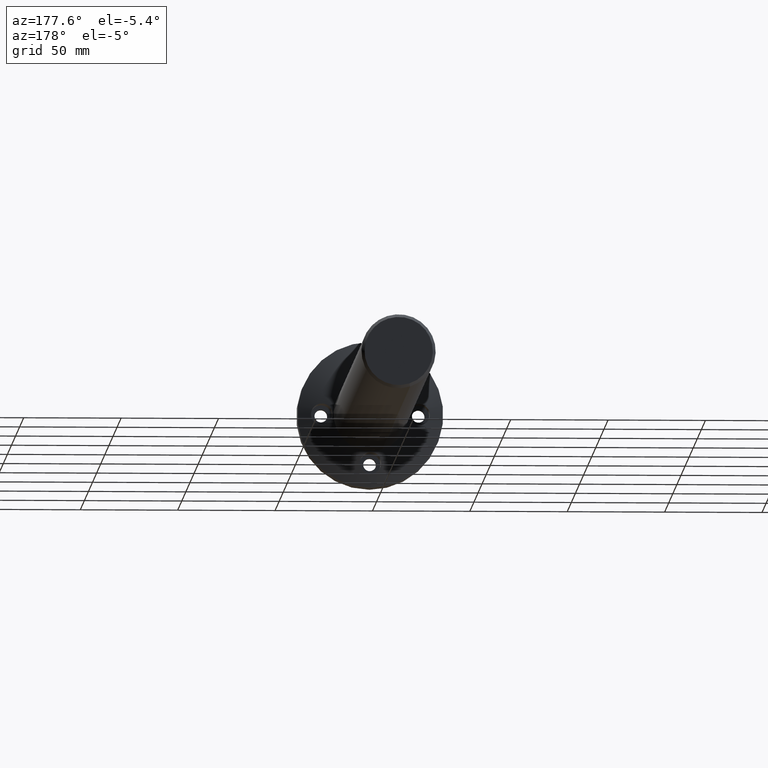
[diagram: clean part render]
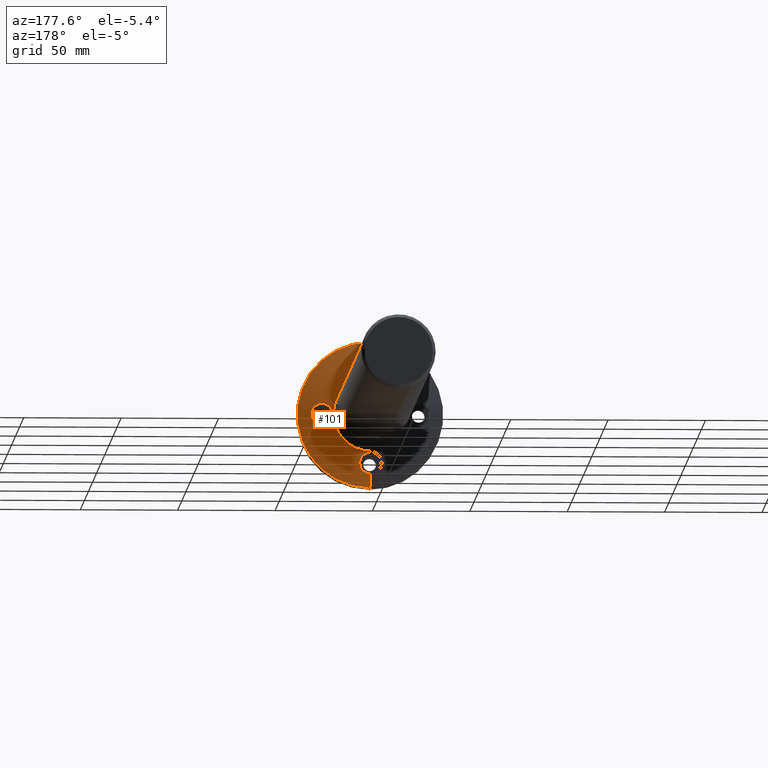
[diagram: same view with one face highlighted and labeled with its STEP entity id]
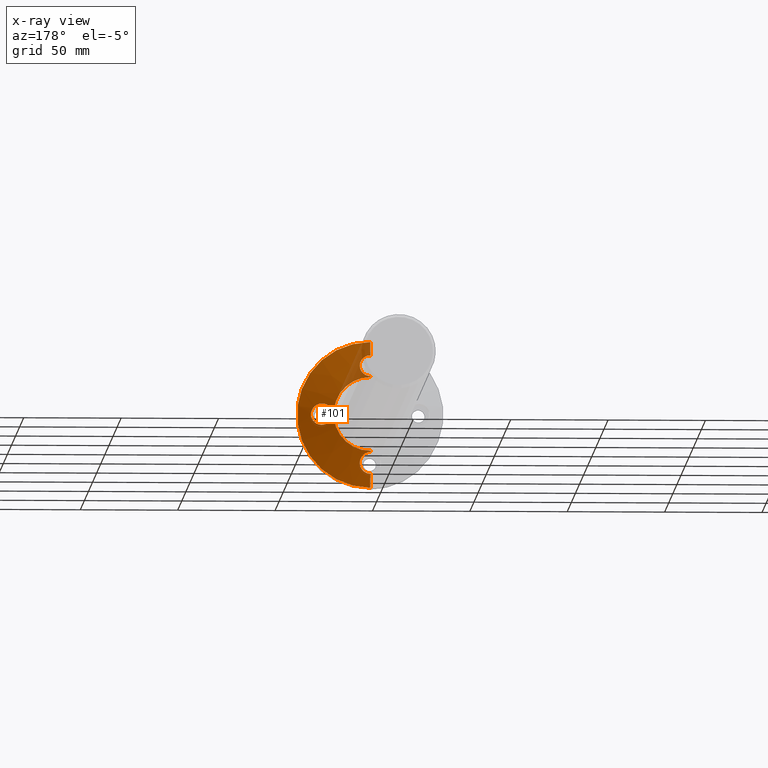
[diagram: x-ray of the same camera — body ghosted, the highlighted face saturated]
A machine part, auxiliary view. The second image highlights one B-rep face of the part: STEP entity #101.
The next image is the same camera in x-ray: the body ghosted, the highlighted face saturated — about 9% of this face is hidden behind the body in this view.
In plain terms, the highlighted conical surface has half-angle 74.876 deg.
Its self-contained STEP definition (entity closure, byte-faithful):
#10 = CARTESIAN_POINT ( 'NONE',  ( -16.60624658554945700, 68.65460829900169400, -0.09569721154230280400 ) ) ;
#26 = ORIENTED_EDGE ( 'NONE', *, *, #618, .F. ) ;
#32 = CARTESIAN_POINT ( 'NONE',  ( -16.94690578001978000, 68.73266439080711600, 0.3275742327244381400 ) ) ;
#40 = CARTESIAN_POINT ( 'NONE',  ( -21.05816251671771900, 69.74399576351258600, -8.830357665184697800 ) ) ;
#50 = EDGE_CURVE ( 'NONE', #1341, #619, #439, .T. ) ;
#52 = VECTOR ( 'NONE', #536, 1000.000000000000200 ) ;
#60 = CARTESIAN_POINT ( 'NONE',  ( -44.60539087235412800, 71.32912395020548500, 16.35219785183014500 ) ) ;
#62 = DIRECTION ( 'NONE',  ( 0.0000000000000000000, 0.0000000000000000000, -1.000000000000000000 ) ) ;
#64 = CARTESIAN_POINT ( 'NONE',  ( -43.58958089557030000, 71.19733541957762700, 16.74139431252769900 ) ) ;
#71 = CARTESIAN_POINT ( 'NONE',  ( -24.65365441994059400, 70.76842541944434100, -7.508066868315199600 ) ) ;
#75 = CARTESIAN_POINT ( 'NONE',  ( -26.55772630472841600, 71.39191258144171600, -2.953564303136255300 ) ) ;
#78 = CARTESIAN_POINT ( 'NONE',  ( -25.16978525371929700, 70.93057220964379900, -7.001239668278084400 ) ) ;
#82 = CARTESIAN_POINT ( 'NONE',  ( -43.11920126176104900, 71.10603420446851400, -23.67793994042920500 ) ) ;
#96 = DIRECTION ( 'NONE',  ( -0.0000000000000000000, -1.000000000000000000, -0.0000000000000000000 ) ) ;
#97 = CARTESIAN_POINT ( 'NONE',  ( -44.78879097471314500, 68.45134600886341000, -33.68502441749484400 ) ) ;
#101 = ADVANCED_FACE ( 'NONE', ( #1251, #1293 ), #1339, .T. ) ;
#103 = CARTESIAN_POINT ( 'NONE',  ( -40.56023412354571900, 69.84644654984101900, -27.94266016243413000 ) ) ;
#113 = CARTESIAN_POINT ( 'NONE',  ( -41.65876763513186600, 68.92036512662151900, 24.97538976976871400 ) ) ;
#122 = CARTESIAN_POINT ( 'NONE',  ( -40.58931737704087100, 69.56522259748140900, 22.35352294922280700 ) ) ;
#128 = CARTESIAN_POINT ( 'NONE',  ( -46.05816251671766500, 71.52719886414516300, -22.33035766518410300 ) ) ;
#129 = VERTEX_POINT ( 'NONE', #632 ) ;
#131 = CARTESIAN_POINT ( 'NONE',  ( -41.88519854635259800, 68.85422633551064600, 25.25698301139731300 ) ) ;
#133 = CARTESIAN_POINT ( 'NONE',  ( -17.73522663128871500, 68.91605519127281800, 1.066963624835175000 ) ) ;
#166 = CARTESIAN_POINT ( 'NONE',  ( -46.05816251671766500, 71.52719886414516300, 15.66964233481589600 ) ) ;
#188 = CARTESIAN_POINT ( 'NONE',  ( -40.59595451737827400, 69.93981530469852700, 20.93579907716550200 ) ) ;
#191 = CARTESIAN_POINT ( 'NONE',  ( -21.05816251671766500, 69.74399576351260100, 2.169642334815982600 ) ) ;
#193 = CARTESIAN_POINT ( 'NONE',  ( -41.10692090225045100, 70.41496352874732200, 19.24849630072468900 ) ) ;
#194 = CARTESIAN_POINT ( 'NONE',  ( -46.05816251671766500, 68.41909075603705000, -33.83035766518411000 ) ) ;
#196 = CARTESIAN_POINT ( 'NONE',  ( -21.05816251671771900, 69.74399576351258600, -8.830357665184697800 ) ) ;
#205 = ORIENTED_EDGE ( 'NONE', *, *, #1409, .T. ) ;
#207 = CARTESIAN_POINT ( 'NONE',  ( -40.74383702224907500, 70.13164403224915600, -26.90227744684101200 ) ) ;
#214 = CARTESIAN_POINT ( 'NONE',  ( -44.60522586861683400, 71.32910807330385700, -23.01295950916673400 ) ) ;
#216 = LINE ( 'NONE', #128, #312 ) ;
#220 = CARTESIAN_POINT ( 'NONE',  ( -21.41339346316867400, 69.83776180087851100, -8.830357665184006800 ) ) ;
#222 = EDGE_CURVE ( 'NONE', #1458, #759, #755, .T. ) ;
#224 = CARTESIAN_POINT ( 'NONE',  ( -40.59663953545865000, 69.94116881205749800, -27.59153520947653200 ) ) ;
#226 = ORIENTED_EDGE ( 'NONE', *, *, #1396, .T. ) ;
#230 = CARTESIAN_POINT ( 'NONE',  ( -43.11162022903831600, 68.61007866773638900, -32.97807544447906700 ) ) ;
#237 = CARTESIAN_POINT ( 'NONE',  ( -46.05816251671778600, 68.41909075603673800, 27.16964233481732200 ) ) ;
#240 = CARTESIAN_POINT ( 'NONE',  ( -41.55160049460844400, 68.95526781585121500, 24.82769996619545000 ) ) ;
#250 = ORIENTED_EDGE ( 'NONE', *, *, #50, .T. ) ;
#253 = CARTESIAN_POINT ( 'NONE',  ( -41.25620700986516500, 69.06294756174574400, 24.37536596429857400 ) ) ;
#259 = CARTESIAN_POINT ( 'NONE',  ( -20.70503523770813500, 69.65078500592144900, -8.830357665184022800 ) ) ;
#264 = CARTESIAN_POINT ( 'NONE',  ( -19.31372993312659100, 69.29747811263794700, -8.558455785550494400 ) ) ;
#312 = VECTOR ( 'NONE', #1031, 1000.000000000000200 ) ;
#316 = CARTESIAN_POINT ( 'NONE',  ( -40.55679101883535500, 69.65618820360545300, 22.00201153266048900 ) ) ;
#317 = B_SPLINE_CURVE_WITH_KNOTS ( 'NONE', 3,
 ( #1502, #1115, #846, #60, #1240, #64, #982, #321, #584, #716, #446, #1634, #193, #1383, #976, #188, #1106, #316, #122, #1047, #1573, #382, #253, #240, #113, #131, #1053, #1550, #766, #505, #1560, #1160, #776, #1173, #764, #888, #1308, #237 ),
 .UNSPECIFIED., .F., .F.,
 ( 4, 2, 2, 2, 2, 2, 2, 2, 2, 2, 2, 2, 2, 2, 2, 2, 2, 2, 4 ),
 ( 0.004468675874222742900, 0.005563339059980961600, 0.006658002245739180400, 0.007752665431497399200, 0.008847328617255616200, 0.009941991803013836700, 0.01103665498877205400, 0.01213131817453027400, 0.01322598136028849100, 0.01432064454604671000, 0.01541530773180493100, 0.01650997091756314900, 0.01705730251044225400, 0.01760463410332135900, 0.01869929728907958300, 0.01979396047483780700, 0.02034129206771692600, 0.02088862366059605200, 0.02198328684635429000 ),
 .UNSPECIFIED. ) ;
#321 = CARTESIAN_POINT ( 'NONE',  ( -42.67030034295376600, 71.00646397610276500, 17.32199816697355400 ) ) ;
#335 = CARTESIAN_POINT ( 'NONE',  ( -26.25638516096307000, 71.28848307678021000, -1.524243724962500700 ) ) ;
#336 = CARTESIAN_POINT ( 'NONE',  ( -46.05816251671766500, 71.39206372901001900, -22.83035766518410600 ) ) ;
#344 = CARTESIAN_POINT ( 'NONE',  ( -26.55859123002772300, 71.39221227828372200, -3.694306927961810600 ) ) ;
#349 = VERTEX_POINT ( 'NONE', #661 ) ;
#351 = CARTESIAN_POINT ( 'NONE',  ( -44.25904261686281400, 68.48566770808059800, -33.53100308842083900 ) ) ;
#356 = CARTESIAN_POINT ( 'NONE',  ( -41.09026002585400100, 69.13978856601960400, -30.71751634774037500 ) ) ;
#382 = CARTESIAN_POINT ( 'NONE',  ( -41.09156685698332000, 69.13922176739214400, 24.05916203111402400 ) ) ;
#384 = VECTOR ( 'NONE', #793, 1000.000000000000200 ) ;
#387 = CARTESIAN_POINT ( 'NONE',  ( -16.71482299094971000, 68.67930368028437700, -6.724349529225327700 ) ) ;
#409 = ORIENTED_EDGE ( 'NONE', *, *, #997, .T. ) ;
#411 = CARTESIAN_POINT ( 'NONE',  ( -18.33372144679086800, 69.05845655494984200, 1.460859120020302000 ) ) ;
#416 = CARTESIAN_POINT ( 'NONE',  ( -46.05816251671766500, 71.52719886414516300, -22.33035766518410300 ) ) ;
#429 = CARTESIAN_POINT ( 'NONE',  ( -15.59457620580455600, 68.42714608589422200, -2.601276786680126700 ) ) ;
#439 = B_SPLINE_CURVE_WITH_KNOTS ( 'NONE', 3,
 ( #1258, #1127, #610, #1647, #472, #735, #457, #591, #1655, #1637, #597, #723, #866, #1006, #1515, #850, #335, #1386, #1122, #613, #75, #344, #1268, #1527, #462, #741, #1651, #1399, #78, #71, #729, #862, #989, #1002, #1660, #873, #220, #196 ),
 .UNSPECIFIED., .F., .F.,
 ( 4, 2, 2, 2, 2, 2, 2, 2, 2, 2, 2, 2, 2, 2, 2, 2, 2, 2, 4 ),
 ( 0.02175546955724257500, 0.02285220342231097900, 0.02394893728737938400, 0.02449730421991359200, 0.02504567115244779900, 0.02614240501751623200, 0.02723913888258466500, 0.02833587274765309700, 0.02888423968018731900, 0.02943260661272154000, 0.03052934047778998300, 0.03162607434285842600, 0.03272280820792687600, 0.03381954207299531900, 0.03491627593806376200, 0.03601300980313221200, 0.03710974366820065500, 0.03820647753326909800, 0.03930321139833754100 ),
 .UNSPECIFIED. ) ;
#446 = CARTESIAN_POINT ( 'NONE',  ( -41.66456530071010200, 70.68582886160324100, 18.34223320908488500 ) ) ;
#449 = ORIENTED_EDGE ( 'NONE', *, *, #1049, .T. ) ;
#457 = CARTESIAN_POINT ( 'NONE',  ( -23.45816230670438800, 70.40933113374133300, 1.621598874381808400 ) ) ;
#460 = CARTESIAN_POINT ( 'NONE',  ( -20.35234451495904300, 69.55957688282958900, 2.135806115539552700 ) ) ;
#462 = CARTESIAN_POINT ( 'NONE',  ( -26.26755666788407600, 71.29210116673124300, -5.131666110906019500 ) ) ;
#472 = CARTESIAN_POINT ( 'NONE',  ( -22.80604304112173600, 70.22117763673831800, 1.896491110285839500 ) ) ;
#474 = CARTESIAN_POINT ( 'NONE',  ( -41.11054929936428000, 70.41708536868567600, -25.90197100303684500 ) ) ;
#481 = CARTESIAN_POINT ( 'NONE',  ( -43.27539067963814300, 71.13741378585804400, -23.58280502300192100 ) ) ;
#487 = EDGE_LOOP ( 'NONE', ( #636, #859, #205, #226, #26, #1644, #449, #1213 ) ) ;
#490 = DIRECTION ( 'NONE',  ( 0.0000000000000000000, 0.0000000000000000000, -1.000000000000000000 ) ) ;
#505 = CARTESIAN_POINT ( 'NONE',  ( -43.26609736458345900, 68.58618097378310100, 26.42243712390127200 ) ) ;
#508 = CARTESIAN_POINT ( 'NONE',  ( -46.05816251671766500, 71.52719886414516300, 15.66964233481589600 ) ) ;
#519 = CARTESIAN_POINT ( 'NONE',  ( -15.70373150843245800, 68.45139846615293800, -4.600590315431669600 ) ) ;
#536 = DIRECTION ( 'NONE',  ( 0.0000000000000000000, -0.2609090251427748100, -0.9653633930282662400 ) ) ;
#544 = CARTESIAN_POINT ( 'NONE',  ( -15.91969952652287300, 68.49956082812541100, -5.299874536045741100 ) ) ;
#554 = CARTESIAN_POINT ( 'NONE',  ( -15.59493342548375600, 68.42722498624642900, -4.063035991368762400 ) ) ;
#559 = CARTESIAN_POINT ( 'NONE',  ( -15.85741788476034700, 68.48564558411463600, -5.129156169930223700 ) ) ;
#565 = CARTESIAN_POINT ( 'NONE',  ( -17.45668579638198300, 68.85076286378915700, 0.8421385834060335400 ) ) ;
#574 = CARTESIAN_POINT ( 'NONE',  ( -21.05816251671771900, 69.74399576351258600, -8.830357665184697800 ) ) ;
#584 = CARTESIAN_POINT ( 'NONE',  ( -42.39528542509930300, 70.93279143362494200, 17.55108420008048900 ) ) ;
#591 = CARTESIAN_POINT ( 'NONE',  ( -23.77425080506944600, 70.50233444459665600, 1.455531695380367000 ) ) ;
#597 = CARTESIAN_POINT ( 'NONE',  ( -24.65323950057832300, 70.76830840986028200, 0.8473660412453049000 ) ) ;
#610 = CARTESIAN_POINT ( 'NONE',  ( -21.76726086315408500, 69.93308044410099500, 2.135395654492593400 ) ) ;
#613 = CARTESIAN_POINT ( 'NONE',  ( -26.51989321187921800, 71.37876038322350800, -2.587037761096999200 ) ) ;
#615 = CARTESIAN_POINT ( 'NONE',  ( -40.68822492960811800, 69.43351003810661800, -29.53248688436341100 ) ) ;
#618 = EDGE_CURVE ( 'NONE', #349, #1561, #1495, .T. ) ;
#619 = VERTEX_POINT ( 'NONE', #574 ) ;
#625 = CARTESIAN_POINT ( 'NONE',  ( -43.58899139349178900, 68.54903063833484100, -33.24832615935092400 ) ) ;
#632 = CARTESIAN_POINT ( 'NONE',  ( -46.05816251671766500, 71.39206372901001900, -22.83035766518410600 ) ) ;
#636 = ORIENTED_EDGE ( 'NONE', *, *, #643, .T. ) ;
#643 = EDGE_CURVE ( 'NONE', #990, #1458, #751, .T. ) ;
#652 = CARTESIAN_POINT ( 'NONE',  ( -15.73819577568867300, 68.45905550362310500, -1.888037250524882800 ) ) ;
#661 = CARTESIAN_POINT ( 'NONE',  ( -46.05816251671766500, 66.52719886414514900, -40.83035766518411000 ) ) ;
#667 = AXIS2_PLACEMENT_3D ( 'NONE', #1509, #1643, #1105 ) ;
#682 = CARTESIAN_POINT ( 'NONE',  ( -46.05816251671766500, 66.52719886414514900, 34.16964233481590400 ) ) ;
#701 = B_SPLINE_CURVE_WITH_KNOTS ( 'NONE', 3,
 ( #194, #851, #738, #97, #1019, #351, #1404, #625, #1539, #230, #1270, #1275, #1263, #864, #1145, #356, #748, #752, #1656, #615, #1529, #1014, #103, #224, #1417, #207, #1522, #1678, #474, #1003, #1518, #1410, #742, #1141, #82, #481, #886, #869, #1008, #214, #1125, #1665, #336 ),
 .UNSPECIFIED., .F., .F.,
 ( 4, 2, 2, 1, 2, 2, 2, 2, 2, 2, 2, 2, 2, 2, 2, 2, 2, 2, 2, 2, 2, 4 ),
 ( 0.004156932632860993100, 0.005251641798959641100, 0.005798996382008966000, 0.006346350965058290800, 0.006893705548107614800, 0.007441060131156940600, 0.008535769297255590300, 0.009630478463354240000, 0.01072518762945289800, 0.01127254221250222100, 0.01181989679555154500, 0.01291460596165021300, 0.01400931512774888100, 0.01455666971079822200, 0.01510402429384756000, 0.01619873345994623400, 0.01729344262604491300, 0.01838815179214359200, 0.01893550637519293700, 0.01948286095824228200, 0.02057757012434099900, 0.02167227929043971700 ),
 .UNSPECIFIED. ) ;
#704 = CARTESIAN_POINT ( 'NONE',  ( -17.46366019158469700, 68.85255224359654800, -7.497129224248015000 ) ) ;
#716 = CARTESIAN_POINT ( 'NONE',  ( -41.89042533144418500, 70.77194549937171100, 18.06282151143329500 ) ) ;
#723 = CARTESIAN_POINT ( 'NONE',  ( -25.16408287992512200, 70.92876757956790400, 0.3465121799620609100 ) ) ;
#729 = CARTESIAN_POINT ( 'NONE',  ( -24.37473128081907700, 70.68251409929020200, -7.732184273248290800 ) ) ;
#735 = CARTESIAN_POINT ( 'NONE',  ( -23.29723708930370700, 70.36250471451934600, 1.696351364658877500 ) ) ;
#738 = CARTESIAN_POINT ( 'NONE',  ( -45.32909044894255900, 68.42709048684042700, -33.79419280909189600 ) ) ;
#741 = CARTESIAN_POINT ( 'NONE',  ( -25.98472872053677900, 71.19677149790337000, -5.802491354575341400 ) ) ;
#742 = CARTESIAN_POINT ( 'NONE',  ( -42.39757600260455900, 70.93338031717738100, -24.20997899590841100 ) ) ;
#748 = CARTESIAN_POINT ( 'NONE',  ( -40.88933617556146100, 69.26223789288157200, -30.21857896804521100 ) ) ;
#751 = CIRCLE ( 'NONE', #806, 19.00000000000000000 ) ;
#752 = CARTESIAN_POINT ( 'NONE',  ( -40.83012682751781600, 69.30449823149453400, -30.04777201416505900 ) ) ;
#755 = LINE ( 'NONE', #508, #384 ) ;
#759 = VERTEX_POINT ( 'NONE', #1271 ) ;
#764 = CARTESIAN_POINT ( 'NONE',  ( -44.78964719715499900, 68.45130371031062600, 27.02449936426412000 ) ) ;
#766 = CARTESIAN_POINT ( 'NONE',  ( -42.65938638619843500, 68.68013469303598100, 26.00934358438731700 ) ) ;
#776 = CARTESIAN_POINT ( 'NONE',  ( -44.25926846235225300, 68.48564788420746700, 26.87037641606230700 ) ) ;
#783 = CARTESIAN_POINT ( 'NONE',  ( -15.84464287357069700, 68.48273990715955500, -1.540424313911273700 ) ) ;
#793 = DIRECTION ( 'NONE',  ( 1.182229189286094700E-016, -0.2609090251427748100, 0.9653633930282662400 ) ) ;
#796 = CARTESIAN_POINT ( 'NONE',  ( -46.05816251671766500, 71.52719886414516300, -22.33035766518410300 ) ) ;
#806 = AXIS2_PLACEMENT_3D ( 'NONE', #1368, #843, #62 ) ;
#843 = DIRECTION ( 'NONE',  ( -0.0000000000000000000, -1.000000000000000000, -0.0000000000000000000 ) ) ;
#846 = CARTESIAN_POINT ( 'NONE',  ( -45.32764572194874800, 71.37944363670172300, 16.20593420819867300 ) ) ;
#850 = CARTESIAN_POINT ( 'NONE',  ( -26.19264545190629100, 71.26684472791721700, -1.350351319131729300 ) ) ;
#851 = CARTESIAN_POINT ( 'NONE',  ( -45.69219328943715700, 68.41909075603706500, -33.83035766518411700 ) ) ;
#859 = ORIENTED_EDGE ( 'NONE', *, *, #222, .T. ) ;
#862 = CARTESIAN_POINT ( 'NONE',  ( -23.78211366240538300, 70.50419597494223500, -8.121578387545119100 ) ) ;
#864 = CARTESIAN_POINT ( 'NONE',  ( -41.64727705074945900, 68.92028718105446200, -31.63533288809220800 ) ) ;
#866 = CARTESIAN_POINT ( 'NONE',  ( -25.39944191147544600, 71.00440698908691700, 0.06568064911366004700 ) ) ;
#869 = CARTESIAN_POINT ( 'NONE',  ( -43.75838545497507000, 71.22130929603065400, -23.33098513696145600 ) ) ;
#873 = CARTESIAN_POINT ( 'NONE',  ( -21.77212438126205600, 69.93441324458335400, -8.795261159280405700 ) ) ;
#886 = CARTESIAN_POINT ( 'NONE',  ( -43.59509652272583900, 71.19504861930337800, -23.40934343062077600 ) ) ;
#888 = CARTESIAN_POINT ( 'NONE',  ( -45.32887363853427600, 68.42710795690497600, 27.13339904786091600 ) ) ;
#902 = AXIS2_PLACEMENT_3D ( 'NONE', #1283, #96, #490 ) ;
#920 = CARTESIAN_POINT ( 'NONE',  ( -16.71484007802989800, 68.67940008477933100, 0.04876173465541567400 ) ) ;
#946 = CARTESIAN_POINT ( 'NONE',  ( -46.05816251671766500, 68.41909075603705000, -33.83035766518411000 ) ) ;
#951 = CARTESIAN_POINT ( 'NONE',  ( -16.30247597256563500, 68.58553246156735400, -0.5440015630421890500 ) ) ;
#959 = CARTESIAN_POINT ( 'NONE',  ( -15.74944904431587900, 68.46156768525899800, -4.779834141519482500 ) ) ;
#976 = CARTESIAN_POINT ( 'NONE',  ( -40.73431480303295900, 70.13028925346291900, 20.24455017065935500 ) ) ;
#979 = CARTESIAN_POINT ( 'NONE',  ( -20.70655053729834800, 69.65118498131612100, 2.169642334815983500 ) ) ;
#982 = CARTESIAN_POINT ( 'NONE',  ( -43.26597147973495800, 71.13862595730329000, 16.91745450902581600 ) ) ;
#989 = CARTESIAN_POINT ( 'NONE',  ( -23.46522857230531800, 70.41084515950663600, -8.288517806627428500 ) ) ;
#990 = VERTEX_POINT ( 'NONE', #416 ) ;
#997 = EDGE_CURVE ( 'NONE', #619, #1341, #1239, .T. ) ;
#1002 = CARTESIAN_POINT ( 'NONE',  ( -22.80441675599360400, 70.22070405507861300, -8.557968507239051400 ) ) ;
#1003 = CARTESIAN_POINT ( 'NONE',  ( -41.27614385645049600, 70.50897361022485700, -25.59031037805897700 ) ) ;
#1006 = CARTESIAN_POINT ( 'NONE',  ( -25.80533537256015100, 71.13696586861961200, -0.5296197459422723500 ) ) ;
#1008 = CARTESIAN_POINT ( 'NONE',  ( -44.25841935824875900, 71.29223307201826300, -23.12058555863242000 ) ) ;
#1014 = CARTESIAN_POINT ( 'NONE',  ( -40.55626110555149900, 69.65770613138654700, -28.65686468178970600 ) ) ;
#1019 = CARTESIAN_POINT ( 'NONE',  ( -44.60901447667077200, 68.46154507596260400, -33.63917252259958000 ) ) ;
#1031 = DIRECTION ( 'NONE',  ( 0.0000000000000000000, -0.2609090251427748100, -0.9653633930282662400 ) ) ;
#1047 = CARTESIAN_POINT ( 'NONE',  ( -40.72256661132782100, 69.38803921621769200, 23.05072024388380600 ) ) ;
#1049 = EDGE_CURVE ( 'NONE', #1319, #129, #701, .T. ) ;
#1053 = CARTESIAN_POINT ( 'NONE',  ( -42.00480826000956100, 68.82282800068861700, 25.39155962834702900 ) ) ;
#1081 = VECTOR ( 'NONE', #1609, 1000.000000000000200 ) ;
#1105 = DIRECTION ( 'NONE',  ( 0.0000000000000000000, 0.0000000000000000000, -1.000000000000000000 ) ) ;
#1106 = CARTESIAN_POINT ( 'NONE',  ( -40.55962176802300700, 69.84340603248759300, 21.29333491217842300 ) ) ;
#1115 = CARTESIAN_POINT ( 'NONE',  ( -45.69331069003916200, 71.39206372901003300, 16.16964233481590400 ) ) ;
#1119 = LINE ( 'NONE', #166, #1081 ) ;
#1122 = CARTESIAN_POINT ( 'NONE',  ( -26.41040810007819700, 71.34109824788355100, -2.051012566327491200 ) ) ;
#1125 = CARTESIAN_POINT ( 'NONE',  ( -45.32744050975124100, 71.37943371831605100, -22.86667819054924400 ) ) ;
#1127 = CARTESIAN_POINT ( 'NONE',  ( -21.41186913655994000, 69.83735944273043100, 2.169642334815982600 ) ) ;
#1141 = CARTESIAN_POINT ( 'NONE',  ( -42.67177555698351200, 71.00684622882039300, -23.98152803711849800 ) ) ;
#1142 = EDGE_CURVE ( 'NONE', #990, #129, #216, .T. ) ;
#1145 = CARTESIAN_POINT ( 'NONE',  ( -41.25523281921680800, 69.06340735559139400, -31.03417684160665100 ) ) ;
#1160 = CARTESIAN_POINT ( 'NONE',  ( -44.08797729279596900, 68.49961331694189000, 26.80787017567852700 ) ) ;
#1173 = CARTESIAN_POINT ( 'NONE',  ( -44.60982207331247900, 68.46149367997883000, 26.97868789524069300 ) ) ;
#1178 = CARTESIAN_POINT ( 'NONE',  ( -20.35477101894306900, 69.56020882413001500, -8.796657596663486300 ) ) ;
#1184 = CARTESIAN_POINT ( 'NONE',  ( -18.34122629261159800, 69.06025689530280000, -8.125893360819493000 ) ) ;
#1203 = CARTESIAN_POINT ( 'NONE',  ( -46.05816251671778600, 68.41909075603673800, 27.16964233481732200 ) ) ;
#1210 = CARTESIAN_POINT ( 'NONE',  ( -18.65602886944429200, 69.13616469142859000, -8.290781934892292400 ) ) ;
#1213 = ORIENTED_EDGE ( 'NONE', *, *, #1142, .F. ) ;
#1216 = CARTESIAN_POINT ( 'NONE',  ( -17.32971300656974400, 68.82130706905486800, -7.377678569414648300 ) ) ;
#1223 = CARTESIAN_POINT ( 'NONE',  ( -15.55777606184462200, 68.41900514351915800, -2.971149609389062400 ) ) ;
#1226 = CARTESIAN_POINT ( 'NONE',  ( -21.05816251671766500, 69.74399576351260100, 2.169642334815982600 ) ) ;
#1239 = B_SPLINE_CURVE_WITH_KNOTS ( 'NONE', 3,
 ( #40, #259, #1178, #1599, #264, #1210, #1184, #1572, #1353, #704, #1216, #1359, #387, #1612, #1311, #544, #559, #959, #519, #554, #1474, #1223, #429, #652, #783, #1366, #951, #10, #920, #32, #1484, #565, #133, #411, #1468, #1347, #1252, #460, #979, #191 ),
 .UNSPECIFIED., .F., .F.,
 ( 4, 2, 2, 2, 2, 2, 2, 2, 2, 2, 2, 2, 2, 2, 2, 2, 2, 2, 2, 4 ),
 ( 0.004311644938302646400, 0.005401883976986413300, 0.006492123015670179400, 0.007582362054353947200, 0.008127481573695825900, 0.008672601093037704500, 0.009762840131721448000, 0.01085307917040519000, 0.01139819868974706300, 0.01194331820908893500, 0.01303355724777267900, 0.01412379628645642200, 0.01521403532514016600, 0.01630427436382390900, 0.01684939388316578100, 0.01739451340250765300, 0.01848475244119138200, 0.01957499147987511500, 0.02066523051855884500, 0.02175546955724257500 ),
 .UNSPECIFIED. ) ;
#1240 = CARTESIAN_POINT ( 'NONE',  ( -44.25806383312060200, 71.29221351665543700, 16.45992367458418200 ) ) ;
#1251 = FACE_BOUND ( 'NONE', #1393, .T. ) ;
#1252 = CARTESIAN_POINT ( 'NONE',  ( -19.65251159116656200, 69.38186978966983500, 1.998926621171707200 ) ) ;
#1258 = CARTESIAN_POINT ( 'NONE',  ( -21.05816251671766500, 69.74399576351260100, 2.169642334815982600 ) ) ;
#1263 = CARTESIAN_POINT ( 'NONE',  ( -41.87681137406495700, 68.85317190161241300, -31.92152689737128700 ) ) ;
#1268 = CARTESIAN_POINT ( 'NONE',  ( -26.52198648759295100, 71.37948506412927000, -4.058651302429844100 ) ) ;
#1270 = CARTESIAN_POINT ( 'NONE',  ( -42.65862362116435900, 68.68030181192145300, -32.66933258258673300 ) ) ;
#1271 = CARTESIAN_POINT ( 'NONE',  ( -46.05816251671766500, 71.39206372901001900, 16.16964233481589400 ) ) ;
#1275 = CARTESIAN_POINT ( 'NONE',  ( -42.38182282761938800, 68.73354036258273000, -32.43702545339535000 ) ) ;
#1283 = CARTESIAN_POINT ( 'NONE',  ( -46.05816251671766500, 71.52719886414516300, -3.330357665184104500 ) ) ;
#1290 = EDGE_CURVE ( 'NONE', #1319, #349, #1450, .T. ) ;
#1293 = FACE_OUTER_BOUND ( 'NONE', #487, .T. ) ;
#1308 = CARTESIAN_POINT ( 'NONE',  ( -45.69180207777663600, 68.41909075603703600, 27.16964233481590400 ) ) ;
#1311 = CARTESIAN_POINT ( 'NONE',  ( -16.13074146031467400, 68.54686586056121200, -5.800522873780104200 ) ) ;
#1319 = VERTEX_POINT ( 'NONE', #946 ) ;
#1339 = CONICAL_SURFACE ( 'NONE', #902, 19.00000000000000000, 1.306832603169191900 ) ;
#1341 = VERTEX_POINT ( 'NONE', #1226 ) ;
#1347 = CARTESIAN_POINT ( 'NONE',  ( -19.31310357153230900, 69.29732259623673900, 1.897539054909620000 ) ) ;
#1353 = CARTESIAN_POINT ( 'NONE',  ( -17.74393689646740000, 68.91836626974928500, -7.723345342026245700 ) ) ;
#1359 = CARTESIAN_POINT ( 'NONE',  ( -16.94621594995566100, 68.73232838431762600, -7.000570797724453300 ) ) ;
#1366 = CARTESIAN_POINT ( 'NONE',  ( -16.12863031562906400, 68.54638969762612500, -0.8637079636843527600 ) ) ;
#1368 = CARTESIAN_POINT ( 'NONE',  ( -46.05816251671766500, 71.52719886414516300, -3.330357665184104500 ) ) ;
#1383 = CARTESIAN_POINT ( 'NONE',  ( -40.83610969892232100, 70.22535539569347000, 19.90700056423882100 ) ) ;
#1386 = CARTESIAN_POINT ( 'NONE',  ( -26.36505556666009300, 71.32553938909204300, -1.874180347450699700 ) ) ;
#1393 = EDGE_LOOP ( 'NONE', ( #250, #409 ) ) ;
#1396 = EDGE_CURVE ( 'NONE', #1499, #1561, #1119, .T. ) ;
#1399 = CARTESIAN_POINT ( 'NONE',  ( -25.40312012538033000, 71.00558865660684700, -6.722048817251466500 ) ) ;
#1404 = CARTESIAN_POINT ( 'NONE',  ( -43.91662364862219900, 68.51358187491888400, -33.40606577671603400 ) ) ;
#1409 = EDGE_CURVE ( 'NONE', #759, #1499, #317, .T. ) ;
#1410 = CARTESIAN_POINT ( 'NONE',  ( -41.89570031705680000, 70.77376485808245800, -24.71769625814318200 ) ) ;
#1417 = CARTESIAN_POINT ( 'NONE',  ( -40.70079944695015700, 70.08394081049039000, -27.07350289526797800 ) ) ;
#1450 = LINE ( 'NONE', #796, #52 ) ;
#1458 = VERTEX_POINT ( 'NONE', #1590 ) ;
#1468 = CARTESIAN_POINT ( 'NONE',  ( -18.65523166618161400, 69.13597105615907900, 1.629688520657330800 ) ) ;
#1474 = CARTESIAN_POINT ( 'NONE',  ( -15.55855523485135400, 68.41917775607395000, -3.701304191710210300 ) ) ;
#1484 = CARTESIAN_POINT ( 'NONE',  ( -17.07076729442651700, 68.76122888638872200, 0.4621704123856528200 ) ) ;
#1495 = CIRCLE ( 'NONE', #667, 37.50000000000000000 ) ;
#1499 = VERTEX_POINT ( 'NONE', #1203 ) ;
#1502 = CARTESIAN_POINT ( 'NONE',  ( -46.05816251671766500, 71.39206372901001900, 16.16964233481589400 ) ) ;
#1509 = CARTESIAN_POINT ( 'NONE',  ( -46.05816251671766500, 66.52719886414514900, -3.330357665184104500 ) ) ;
#1515 = CARTESIAN_POINT ( 'NONE',  ( -25.97870339432914100, 71.19475523388280200, -0.8460794922821840400 ) ) ;
#1518 = CARTESIAN_POINT ( 'NONE',  ( -41.66728297921970600, 70.68693362621462500, -24.99933102314011900 ) ) ;
#1522 = CARTESIAN_POINT ( 'NONE',  ( -40.84690756120404100, 70.22727328620732100, -26.56279144016837200 ) ) ;
#1527 = CARTESIAN_POINT ( 'NONE',  ( -26.37743004399815700, 71.32974958758661900, -4.775756219211028300 ) ) ;
#1529 = CARTESIAN_POINT ( 'NONE',  ( -40.58893189030104800, 69.56613000511858000, -29.01072062074039300 ) ) ;
#1539 = CARTESIAN_POINT ( 'NONE',  ( -43.26881410724721600, 68.58834887349749500, -33.07406461186353400 ) ) ;
#1550 = CARTESIAN_POINT ( 'NONE',  ( -42.38254545758856300, 68.73341531803548300, 25.77685982548802800 ) ) ;
#1560 = CARTESIAN_POINT ( 'NONE',  ( -43.58572911129689900, 68.54710161655786700, 26.59601358559086700 ) ) ;
#1561 = VERTEX_POINT ( 'NONE', #682 ) ;
#1572 = CARTESIAN_POINT ( 'NONE',  ( -17.89094136745309200, 68.95309767813341800, -7.830461714552721600 ) ) ;
#1573 = CARTESIAN_POINT ( 'NONE',  ( -40.82484211134243400, 69.30131622413782100, 23.39858257697926900 ) ) ;
#1590 = CARTESIAN_POINT ( 'NONE',  ( -46.05816251671766500, 71.52719886414516300, 15.66964233481589600 ) ) ;
#1599 = CARTESIAN_POINT ( 'NONE',  ( -19.66014723783770200, 69.38379313597202700, -8.661468977101282700 ) ) ;
#1609 = DIRECTION ( 'NONE',  ( 1.182229189286094700E-016, -0.2609090251427748100, 0.9653633930282662400 ) ) ;
#1612 = CARTESIAN_POINT ( 'NONE',  ( -16.30364681859627000, 68.58579314327349200, -6.119328709421311400 ) ) ;
#1634 = CARTESIAN_POINT ( 'NONE',  ( -41.27421166545642000, 70.50796120513126700, 18.93300895797787600 ) ) ;
#1637 = CARTESIAN_POINT ( 'NONE',  ( -24.37648147475341200, 70.68304098557268800, 1.070313621706013400 ) ) ;
#1643 = DIRECTION ( 'NONE',  ( -0.0000000000000000000, -1.000000000000000000, -0.0000000000000000000 ) ) ;
#1644 = ORIENTED_EDGE ( 'NONE', *, *, #1290, .F. ) ;
#1647 = CARTESIAN_POINT ( 'NONE',  ( -22.46743067931758000, 70.12585004187327800, 1.997985704227998300 ) ) ;
#1651 = CARTESIAN_POINT ( 'NONE',  ( -25.81182728101672200, 71.13910610798167500, -6.120500457363262600 ) ) ;
#1655 = CARTESIAN_POINT ( 'NONE',  ( -23.92947881463251700, 70.54853789348715100, 1.364035782105845500 ) ) ;
#1656 = CARTESIAN_POINT ( 'NONE',  ( -40.72976034226602600, 69.39003614321958900, -29.70513018488761500 ) ) ;
#1660 = CARTESIAN_POINT ( 'NONE',  ( -22.46571052756738900, 70.12538269605777000, -8.658933491890779900 ) ) ;
#1665 = CARTESIAN_POINT ( 'NONE',  ( -45.69330053118041200, 71.39206372901003300, -22.83035766518410600 ) ) ;
#1678 = CARTESIAN_POINT ( 'NONE',  ( -40.90726174537810100, 70.27537366265826800, -26.39394194892650300 ) ) ;